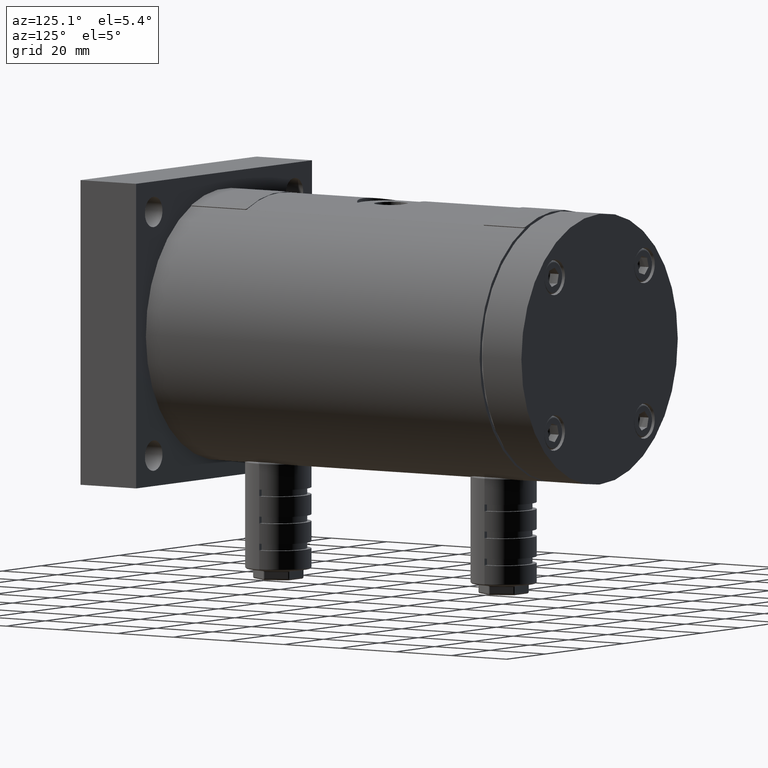
[diagram: clean part render]
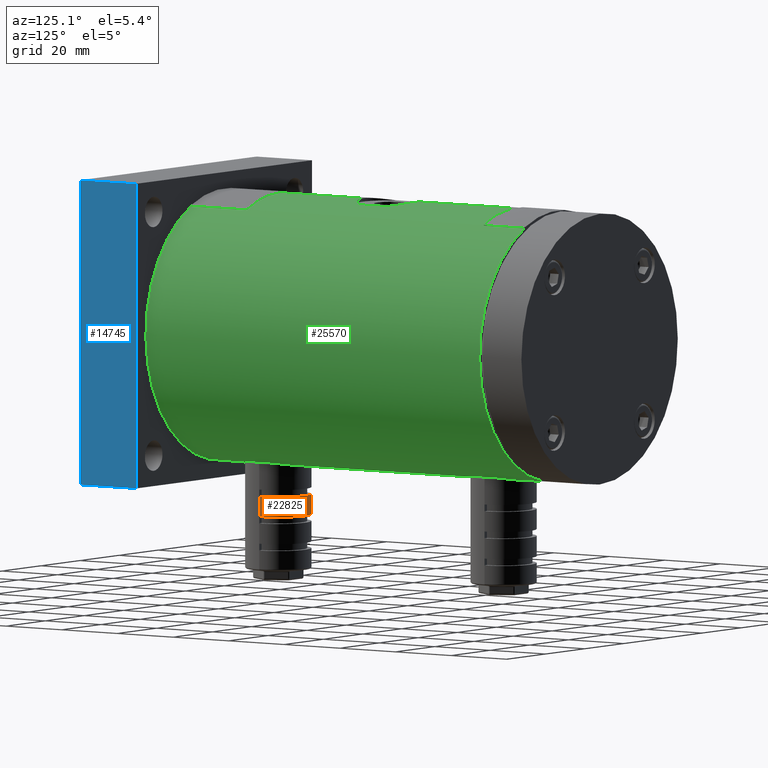
[diagram: same view with three faces highlighted in distinct colors, each labeled with its STEP entity id]
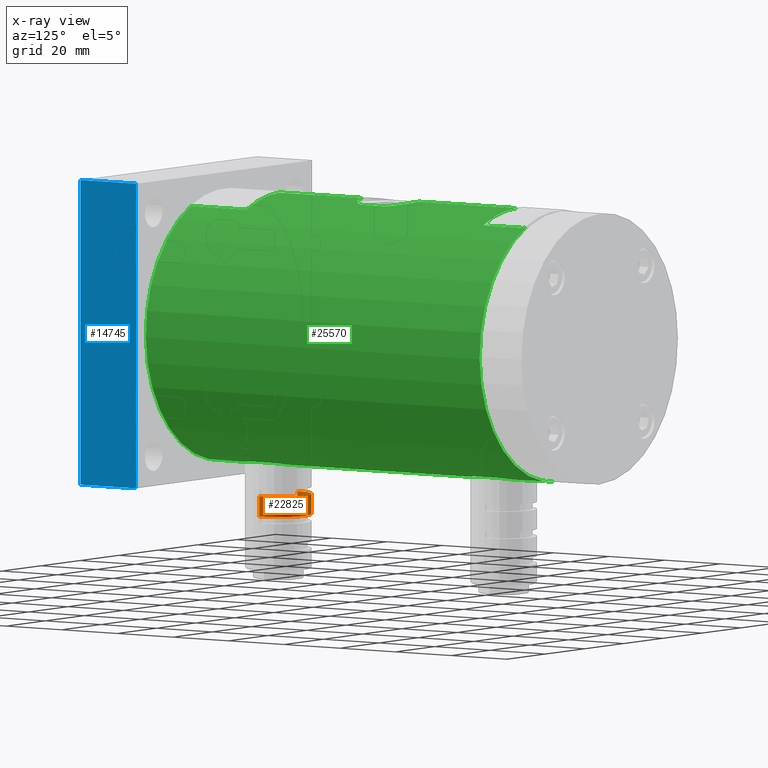
[diagram: x-ray of the same camera — body ghosted, the three highlighted faces saturated]
A machine part, auxiliary view with three faces highlighted in distinct colors.
The next image is the same camera in x-ray (body ghosted, the three faces saturated) — at least one of them is partly hidden behind the body in this view.
Their STEP definitions:

[orange] entity #22825 — the highlighted cylindrical surface (edge-blend (fillet) strip) has radius 9.75 mm, axis along (0, 0, 1).
#14 = VERTEX_POINT ( 'NONE', #27151 ) ;
#118 = VECTOR ( 'NONE', #29198, 1000.000000000000000 ) ;
#1915 = CARTESIAN_POINT ( 'NONE',  ( -9.750000000000000000, 39.50000000000000000, -55.00000000000000000 ) ) ;
#2531 = CARTESIAN_POINT ( 'NONE',  ( 9.750000000000000000, 39.50000000000000000, -49.00000000000000000 ) ) ;
#2905 = DIRECTION ( 'NONE',  ( 0.0000000000000000000, 0.0000000000000000000, -1.000000000000000000 ) ) ;
#5059 = EDGE_CURVE ( 'NONE', #15337, #8485, #15505, .T. ) ;
#7874 = FACE_OUTER_BOUND ( 'NONE', #16492, .T. ) ;
#8348 = CARTESIAN_POINT ( 'NONE',  ( 0.0000000000000000000, 39.50000000000000000, -49.00000000000000000 ) ) ;
#8485 = VERTEX_POINT ( 'NONE', #2531 ) ;
#10436 = ORIENTED_EDGE ( 'NONE', *, *, #5059, .F. ) ;
#11415 = CARTESIAN_POINT ( 'NONE',  ( 9.750000000000000000, 39.50000000000000000, -71.00000000000000000 ) ) ;
#12764 = CARTESIAN_POINT ( 'NONE',  ( 9.750000000000000000, 39.50000000000000000, -55.00000000000000000 ) ) ;
#13648 = ORIENTED_EDGE ( 'NONE', *, *, #30459, .T. ) ;
#13779 = DIRECTION ( 'NONE',  ( -1.000000000000000000, 0.0000000000000000000, 0.0000000000000000000 ) ) ;
#13902 = DIRECTION ( 'NONE',  ( 1.000000000000000000, 0.0000000000000000000, 0.0000000000000000000 ) ) ;
#14058 = DIRECTION ( 'NONE',  ( 0.0000000000000000000, 0.0000000000000000000, 1.000000000000000000 ) ) ;
#15042 = DIRECTION ( 'NONE',  ( -1.000000000000000000, 0.0000000000000000000, 0.0000000000000000000 ) ) ;
#15337 = VERTEX_POINT ( 'NONE', #12764 ) ;
#15505 = LINE ( 'NONE', #11415, #20708 ) ;
#16492 = EDGE_LOOP ( 'NONE', ( #23538, #13648, #29654, #10436 ) ) ;
#16694 = AXIS2_PLACEMENT_3D ( 'NONE', #32345, #2905, #15042 ) ;
#20417 = CYLINDRICAL_SURFACE ( 'NONE', #23434, 9.750000000000000000 ) ;
#20708 = VECTOR ( 'NONE', #14058, 1000.000000000000000 ) ;
#21719 = CARTESIAN_POINT ( 'NONE',  ( -9.750000000000000000, 39.50000000000000000, -71.00000000000000000 ) ) ;
#22594 = VERTEX_POINT ( 'NONE', #1915 ) ;
#22825 = ADVANCED_FACE ( 'NONE', ( #7874 ), #20417, .T. ) ;
#22852 = AXIS2_PLACEMENT_3D ( 'NONE', #8348, #23799, #13779 ) ;
#23434 = AXIS2_PLACEMENT_3D ( 'NONE', #26735, #26957, #13902 ) ;
#23538 = ORIENTED_EDGE ( 'NONE', *, *, #29781, .F. ) ;
#23799 = DIRECTION ( 'NONE',  ( 0.0000000000000000000, 0.0000000000000000000, -1.000000000000000000 ) ) ;
#25002 = CIRCLE ( 'NONE', #22852, 9.750000000000000000 ) ;
#26735 = CARTESIAN_POINT ( 'NONE',  ( 0.0000000000000000000, 39.50000000000000000, -71.00000000000000000 ) ) ;
#26957 = DIRECTION ( 'NONE',  ( 0.0000000000000000000, 0.0000000000000000000, 1.000000000000000000 ) ) ;
#26995 = CIRCLE ( 'NONE', #16694, 9.750000000000000000 ) ;
#27151 = CARTESIAN_POINT ( 'NONE',  ( -9.750000000000000000, 39.50000000000000000, -49.00000000000000000 ) ) ;
#27261 = LINE ( 'NONE', #21719, #118 ) ;
#29198 = DIRECTION ( 'NONE',  ( 0.0000000000000000000, 0.0000000000000000000, 1.000000000000000000 ) ) ;
#29654 = ORIENTED_EDGE ( 'NONE', *, *, #29995, .T. ) ;
#29781 = EDGE_CURVE ( 'NONE', #22594, #15337, #26995, .T. ) ;
#29995 = EDGE_CURVE ( 'NONE', #14, #8485, #25002, .T. ) ;
#30459 = EDGE_CURVE ( 'NONE', #22594, #14, #27261, .T. ) ;
#32345 = CARTESIAN_POINT ( 'NONE',  ( 0.0000000000000000000, 39.50000000000000000, -55.00000000000000000 ) ) ;

[blue] entity #14745 — the highlighted planar face has unit normal (-1, 0, 0).
#163 = LINE ( 'NONE', #1125, #11514 ) ;
#499 = EDGE_CURVE ( 'NONE', #29553, #1955, #4841, .T. ) ;
#591 = VECTOR ( 'NONE', #31223, 1000.000000000000000 ) ;
#798 = CARTESIAN_POINT ( 'NONE',  ( 45.00000000000000000, 0.0000000000000000000, 45.00000000000000000 ) ) ;
#1125 = CARTESIAN_POINT ( 'NONE',  ( 45.00000000000000000, 20.00000000000000000, 45.00000000000000000 ) ) ;
#1955 = VERTEX_POINT ( 'NONE', #4145 ) ;
#4145 = CARTESIAN_POINT ( 'NONE',  ( 45.00000000000000000, 0.0000000000000000000, -45.00000000000000000 ) ) ;
#4168 = CARTESIAN_POINT ( 'NONE',  ( 45.00000000000000000, 20.00000000000000000, -45.00000000000000000 ) ) ;
#4841 = LINE ( 'NONE', #8728, #23038 ) ;
#8728 = CARTESIAN_POINT ( 'NONE',  ( 45.00000000000000000, 0.0000000000000000000, 45.00000000000000000 ) ) ;
#9230 = EDGE_CURVE ( 'NONE', #17350, #12752, #163, .T. ) ;
#9331 = DIRECTION ( 'NONE',  ( 0.0000000000000000000, 0.0000000000000000000, -1.000000000000000000 ) ) ;
#10152 = DIRECTION ( 'NONE',  ( -1.000000000000000000, 0.0000000000000000000, 0.0000000000000000000 ) ) ;
#10764 = AXIS2_PLACEMENT_3D ( 'NONE', #17846, #10152, #20083 ) ;
#11514 = VECTOR ( 'NONE', #9331, 1000.000000000000000 ) ;
#12039 = EDGE_LOOP ( 'NONE', ( #21715, #13822, #29342, #32900 ) ) ;
#12752 = VERTEX_POINT ( 'NONE', #4168 ) ;
#13203 = LINE ( 'NONE', #28583, #591 ) ;
#13822 = ORIENTED_EDGE ( 'NONE', *, *, #9230, .F. ) ;
#14745 = ADVANCED_FACE ( 'NONE', ( #23303 ), #28211, .F. ) ;
#15001 = EDGE_CURVE ( 'NONE', #1955, #12752, #13203, .T. ) ;
#15582 = CARTESIAN_POINT ( 'NONE',  ( 45.00000000000000000, 20.00000000000000000, 45.00000000000000000 ) ) ;
#17350 = VERTEX_POINT ( 'NONE', #30323 ) ;
#17846 = CARTESIAN_POINT ( 'NONE',  ( 45.00000000000000000, 20.00000000000000000, 45.00000000000000000 ) ) ;
#20083 = DIRECTION ( 'NONE',  ( 0.0000000000000000000, 0.0000000000000000000, 1.000000000000000000 ) ) ;
#21715 = ORIENTED_EDGE ( 'NONE', *, *, #15001, .T. ) ;
#23038 = VECTOR ( 'NONE', #26762, 1000.000000000000000 ) ;
#23303 = FACE_OUTER_BOUND ( 'NONE', #12039, .T. ) ;
#26692 = DIRECTION ( 'NONE',  ( 0.0000000000000000000, 1.000000000000000000, 0.0000000000000000000 ) ) ;
#26762 = DIRECTION ( 'NONE',  ( 0.0000000000000000000, 0.0000000000000000000, -1.000000000000000000 ) ) ;
#27432 = VECTOR ( 'NONE', #26692, 1000.000000000000000 ) ;
#27819 = LINE ( 'NONE', #15582, #27432 ) ;
#28211 = PLANE ( 'NONE',  #10764 ) ;
#28583 = CARTESIAN_POINT ( 'NONE',  ( 45.00000000000000000, 20.00000000000000000, -45.00000000000000000 ) ) ;
#29342 = ORIENTED_EDGE ( 'NONE', *, *, #32706, .F. ) ;
#29553 = VERTEX_POINT ( 'NONE', #798 ) ;
#30323 = CARTESIAN_POINT ( 'NONE',  ( 45.00000000000000000, 20.00000000000000000, 45.00000000000000000 ) ) ;
#31223 = DIRECTION ( 'NONE',  ( 0.0000000000000000000, 1.000000000000000000, 0.0000000000000000000 ) ) ;
#32706 = EDGE_CURVE ( 'NONE', #29553, #17350, #27819, .T. ) ;
#32900 = ORIENTED_EDGE ( 'NONE', *, *, #499, .T. ) ;

[green] entity #25570 — the highlighted cylindrical surface (partial cylindrical patch) has radius 40 mm, axis along (0, -1, 0).
#269 = LINE ( 'NONE', #27860, #18909 ) ;
#280 = DIRECTION ( 'NONE',  ( 0.0000000000000000000, 0.0000000000000000000, 1.000000000000000000 ) ) ;
#299 = CARTESIAN_POINT ( 'NONE',  ( 4.898587196589413000E-015, 20.00000000000000000, 40.00000000000000000 ) ) ;
#311 = EDGE_CURVE ( 'NONE', #17379, #25959, #27941, .T. ) ;
#406 = VERTEX_POINT ( 'NONE', #23939 ) ;
#546 = CARTESIAN_POINT ( 'NONE',  ( 7.913580384309922200, 45.63062720774981800, -39.21030020162589100 ) ) ;
#656 = VECTOR ( 'NONE', #1209, 1000.000000000000000 ) ;
#894 = CARTESIAN_POINT ( 'NONE',  ( 6.679007288837318000, 113.0436117426184900, -39.44005711361091200 ) ) ;
#984 = ORIENTED_EDGE ( 'NONE', *, *, #5237, .T. ) ;
#990 = CARTESIAN_POINT ( 'NONE',  ( 4.427115605292661000, 129.5131225333751700, -39.76204522458090900 ) ) ;
#1013 = CARTESIAN_POINT ( 'NONE',  ( 7.015596314812253100, 113.3593897249827600, -39.38122163865814000 ) ) ;
#1049 = CARTESIAN_POINT ( 'NONE',  ( 5.972798125681541700, 71.96686855968303600, 39.55315626002003900 ) ) ;
#1209 = DIRECTION ( 'NONE',  ( 0.0000000000000000000, -1.000000000000000000, 0.0000000000000000000 ) ) ;
#1380 = ORIENTED_EDGE ( 'NONE', *, *, #1701, .T. ) ;
#1393 = CARTESIAN_POINT ( 'NONE',  ( 8.677520557029112100, 75.00880907345428700, 39.04801308279163400 ) ) ;
#1447 = CARTESIAN_POINT ( 'NONE',  ( 0.9122863123777285000, 130.4687344212560200, -39.99214966521825700 ) ) ;
#1509 = CARTESIAN_POINT ( 'NONE',  ( 7.623772936783207200, 73.51280136235986600, 39.26801524574085500 ) ) ;
#1701 = EDGE_CURVE ( 'NONE', #12001, #7999, #18520, .T. ) ;
#2019 = EDGE_CURVE ( 'NONE', #6754, #16847, #26251, .T. ) ;
#2166 = CARTESIAN_POINT ( 'NONE',  ( 0.0000000000000000000, 20.00000000000000000, -40.00000000000000000 ) ) ;
#2394 = CARTESIAN_POINT ( 'NONE',  ( 5.605003572320108600, 31.20604910726403200, -39.60727467161500200 ) ) ;
#2507 = CARTESIAN_POINT ( 'NONE',  ( -6.130928347764551100E-026, 29.50000000000000000, -40.00000000000000000 ) ) ;
#2562 = CARTESIAN_POINT ( 'NONE',  ( 16.73075583459029800, 20.05432771339359400, 36.33304702313883900 ) ) ;
#2622 = CARTESIAN_POINT ( 'NONE',  ( 5.974563797508679400, 31.46809788165610300, -39.55289914682276000 ) ) ;
#2816 = CARTESIAN_POINT ( 'NONE',  ( 16.94705028815749900, 39.50000000000000000, 36.23254733703745200 ) ) ;
#2924 = CARTESIAN_POINT ( 'NONE',  ( 0.0000000000000000000, 40.00000000000000000, 0.0000000000000000000 ) ) ;
#3140 = CARTESIAN_POINT ( 'NONE',  ( 4.898587196650661800E-015, 70.00000000000000000, 40.00000000000000000 ) ) ;
#3303 = CARTESIAN_POINT ( 'NONE',  ( 2.266955794406624800, 49.25050890735700900, -39.93817469168590900 ) ) ;
#3566 = AXIS2_PLACEMENT_3D ( 'NONE', #6766, #24957, #11858 ) ;
#3569 = ORIENTED_EDGE ( 'NONE', *, *, #26370, .F. ) ;
#3628 = VERTEX_POINT ( 'NONE', #9009 ) ;
#3629 = CARTESIAN_POINT ( 'NONE',  ( -6.128463157435735500E-026, 110.5000000000000000, -40.00000000000000000 ) ) ;
#3636 = EDGE_CURVE ( 'NONE', #12001, #3628, #30488, .T. ) ;
#3933 = CARTESIAN_POINT ( 'NONE',  ( 5.597780261123928900, 128.7990233608682300, -39.60832935638958200 ) ) ;
#4115 = CARTESIAN_POINT ( 'NONE',  ( 0.9122863123777414900, 70.03126557874398400, 39.99214966521826400 ) ) ;
#4179 = B_SPLINE_CURVE_WITH_KNOTS ( 'NONE', 3,
 ( #25680, #18147, #10991, #26230, #3303, #13167, #13276, #10662, #29065, #18358, #8184, #5666, #546, #5772, #13614, #15779 ),
 .UNSPECIFIED., .F., .F.,
 ( 4, 2, 2, 2, 2, 2, 2, 4 ),
 ( 0.01094653991918589200, 0.01231348059462424700, 0.01368042127006260100, 0.01641430262093930600, 0.01778124329637766100, 0.01914818397181600900, 0.02051512464725436400, 0.02188206532269271500 ),
 .UNSPECIFIED. ) ;
#4511 = CARTESIAN_POINT ( 'NONE',  ( 16.73075583459029000, 125.0543277133935600, 36.33304702313885300 ) ) ;
#4660 = VECTOR ( 'NONE', #5372, 1000.000000000000000 ) ;
#4832 = VERTEX_POINT ( 'NONE', #14558 ) ;
#4854 = CARTESIAN_POINT ( 'NONE',  ( 8.888194417315599300, 20.00000000000000000, 39.00000000000000000 ) ) ;
#5052 = CARTESIAN_POINT ( 'NONE',  ( 16.89803261603199000, 20.23880994704629500, 36.25555116792207900 ) ) ;
#5090 = EDGE_CURVE ( 'NONE', #25959, #19583, #13857, .T. ) ;
#5215 = CARTESIAN_POINT ( 'NONE',  ( 4.426454224360614200, 30.52121732051104900, -39.75658861793081700 ) ) ;
#5237 = EDGE_CURVE ( 'NONE', #26936, #31576, #16251, .T. ) ;
#5243 = CARTESIAN_POINT ( 'NONE',  ( 4.898587196589413000E-015, 125.0000000000000000, 40.00000000000000000 ) ) ;
#5297 = VERTEX_POINT ( 'NONE', #3140 ) ;
#5372 = DIRECTION ( 'NONE',  ( -0.0000000000000000000, 1.000000000000000000, -0.0000000000000000000 ) ) ;
#5459 = AXIS2_PLACEMENT_3D ( 'NONE', #11642, #11999, #14634 ) ;
#5469 = CARTESIAN_POINT ( 'NONE',  ( 2.276489848800112600, 89.74806126590642900, 39.93758036770261600 ) ) ;
#5542 = CARTESIAN_POINT ( 'NONE',  ( 0.0000000000000000000, 20.00000000000000000, -40.00000000000000000 ) ) ;
#5620 = DIRECTION ( 'NONE',  ( 0.0000000000000000000, 1.000000000000000000, 0.0000000000000000000 ) ) ;
#5666 = CARTESIAN_POINT ( 'NONE',  ( 7.623772936783177000, 45.98719863764014800, -39.26801524574085500 ) ) ;
#5756 = CARTESIAN_POINT ( 'NONE',  ( 16.94705028815749900, 140.0000000000000000, 36.23254733703745200 ) ) ;
#5772 = CARTESIAN_POINT ( 'NONE',  ( 8.440347930246039400, 44.88236669837056800, -39.10029313466780100 ) ) ;
#5849 = LINE ( 'NONE', #13090, #4660 ) ;
#6007 = CARTESIAN_POINT ( 'NONE',  ( 3.582574804664378800, 111.1524231388645600, -39.84149838177187100 ) ) ;
#6114 = CARTESIAN_POINT ( 'NONE',  ( 4.426454224360639100, 111.5212173205110800, -39.75658861793080900 ) ) ;
#6260 = ORIENTED_EDGE ( 'NONE', *, *, #13001, .T. ) ;
#6308 = ORIENTED_EDGE ( 'NONE', *, *, #9122, .T. ) ;
#6545 = CARTESIAN_POINT ( 'NONE',  ( 1.815754276317127700, 130.3443368839816700, -39.96132302075351800 ) ) ;
#6754 = VERTEX_POINT ( 'NONE', #14143 ) ;
#6766 = CARTESIAN_POINT ( 'NONE',  ( 0.0000000000000000000, 20.00000000000000000, 0.0000000000000000000 ) ) ;
#6791 = VERTEX_POINT ( 'NONE', #14777 ) ;
#6843 = VERTEX_POINT ( 'NONE', #15447 ) ;
#7063 = AXIS2_PLACEMENT_3D ( 'NONE', #16690, #8893, #30017 ) ;
#7124 = LINE ( 'NONE', #16436, #8322 ) ;
#7724 = CARTESIAN_POINT ( 'NONE',  ( 8.888194417315590500, 34.91742430504415000, -39.00000000000000000 ) ) ;
#7813 = DIRECTION ( 'NONE',  ( 0.0000000000000000000, -1.000000000000000000, 0.0000000000000000000 ) ) ;
#7872 = CARTESIAN_POINT ( 'NONE',  ( 0.9224897157960974000, 89.96790592471269600, 39.99194182858111200 ) ) ;
#7999 = VERTEX_POINT ( 'NONE', #19388 ) ;
#8036 = CARTESIAN_POINT ( 'NONE',  ( 16.89803261603201200, 125.2388099470463300, 36.25555116792206400 ) ) ;
#8184 = CARTESIAN_POINT ( 'NONE',  ( 7.005301154797025200, 46.65062344739445900, -39.38305080693931600 ) ) ;
#8300 = EDGE_LOOP ( 'NONE', ( #14905, #1380, #21657, #30353, #12801, #26971, #984, #28421, #6308, #12895, #29889, #9102, #13029, #8402, #26792, #16249, #3569, #13060, #22968, #24995, #28670, #13068, #30955, #6260 ) ) ;
#8322 = VECTOR ( 'NONE', #23750, 1000.000000000000000 ) ;
#8402 = ORIENTED_EDGE ( 'NONE', *, *, #19149, .T. ) ;
#8618 = CARTESIAN_POINT ( 'NONE',  ( 0.0000000000000000000, 20.00000000000000000, -40.00000000000000000 ) ) ;
#8763 = CARTESIAN_POINT ( 'NONE',  ( 4.831232033113883200, 111.7327379702069400, -39.70908547172410900 ) ) ;
#8797 = CARTESIAN_POINT ( 'NONE',  ( 3.595054090188611400, 70.62334621554227000, 39.84800034127530200 ) ) ;
#8893 = DIRECTION ( 'NONE',  ( 0.0000000000000000000, 1.000000000000000000, 0.0000000000000000000 ) ) ;
#8913 = CARTESIAN_POINT ( 'NONE',  ( 8.888194417315599300, 75.41742430504419300, 39.00000000000000000 ) ) ;
#9009 = CARTESIAN_POINT ( 'NONE',  ( 16.49281940641844800, 125.0000000000000000, 36.44155468729714900 ) ) ;
#9102 = ORIENTED_EDGE ( 'NONE', *, *, #33477, .F. ) ;
#9122 = EDGE_CURVE ( 'NONE', #16627, #6754, #7124, .T. ) ;
#9198 = CARTESIAN_POINT ( 'NONE',  ( 3.595054090188601700, 129.8766537844577700, -39.84800034127530200 ) ) ;
#9730 = CARTESIAN_POINT ( 'NONE',  ( 8.888194417315599300, 84.58257569495590600, 39.00000000000000000 ) ) ;
#9763 = CARTESIAN_POINT ( 'NONE',  ( 16.49281940641844800, 125.0000000000000000, 36.44155468729714900 ) ) ;
#9839 = B_SPLINE_CURVE_WITH_KNOTS ( 'NONE', 3,
 ( #21016, #10967, #16189, #28828, #13248, #13367 ),
 .UNSPECIFIED., .F., .F.,
 ( 4, 2, 4 ),
 ( 0.0000000000000000000, 0.0003905460534146331500, 0.0007810921068292662900 ),
 .UNSPECIFIED. ) ;
#10376 = CARTESIAN_POINT ( 'NONE',  ( 16.94705028815749900, 20.50000000000000000, 36.23254733703745200 ) ) ;
#10415 = LINE ( 'NONE', #8618, #656 ) ;
#10431 = CARTESIAN_POINT ( 'NONE',  ( 2.276489848800120600, 29.75193873409359600, -39.93758036770263000 ) ) ;
#10618 = CARTESIAN_POINT ( 'NONE',  ( 16.49281940641844800, 40.00000000000000000, 36.44155468729714900 ) ) ;
#10662 = CARTESIAN_POINT ( 'NONE',  ( 5.597780261123924500, 47.79902336086824000, -39.60832935638956800 ) ) ;
#10795 = CARTESIAN_POINT ( 'NONE',  ( 4.898587196528142200E-015, 90.00000000000000000, 40.00000000000000000 ) ) ;
#10797 = EDGE_CURVE ( 'NONE', #31576, #16627, #32247, .T. ) ;
#10849 = EDGE_CURVE ( 'NONE', #20903, #16847, #15580, .T. ) ;
#10902 = DIRECTION ( 'NONE',  ( -0.0000000000000000000, 1.000000000000000000, -0.0000000000000000000 ) ) ;
#10913 = CARTESIAN_POINT ( 'NONE',  ( 1.830573553049774900, 89.84170393105509300, 39.96067315453080900 ) ) ;
#10967 = CARTESIAN_POINT ( 'NONE',  ( 16.61312775298392500, 140.0000000000000300, 36.38710520373323500 ) ) ;
#10991 = CARTESIAN_POINT ( 'NONE',  ( 0.9122863123777300600, 49.46873442125600900, -39.99214966521827100 ) ) ;
#11361 = CARTESIAN_POINT ( 'NONE',  ( 7.005301154797059800, 72.84937655260561900, 39.38305080693930200 ) ) ;
#11365 = VERTEX_POINT ( 'NONE', #32609 ) ;
#11642 = CARTESIAN_POINT ( 'NONE',  ( 0.0000000000000000000, 140.0000000000000000, 0.0000000000000000000 ) ) ;
#11823 = CARTESIAN_POINT ( 'NONE',  ( 0.4576248742668091500, 70.00000000000000000, 40.00000000000000000 ) ) ;
#11858 = DIRECTION ( 'NONE',  ( 0.0000000000000000000, 0.0000000000000000000, -1.000000000000000000 ) ) ;
#11999 = DIRECTION ( 'NONE',  ( 0.0000000000000000000, -1.000000000000000000, 0.0000000000000000000 ) ) ;
#12000 = CARTESIAN_POINT ( 'NONE',  ( 8.677520557029110300, 125.4911909265457300, -39.04801308279162700 ) ) ;
#12001 = VERTEX_POINT ( 'NONE', #5243 ) ;
#12290 = CARTESIAN_POINT ( 'NONE',  ( 6.101346063818763200E-026, 130.5000000000000000, -40.00000000000000000 ) ) ;
#12386 = DIRECTION ( 'NONE',  ( 0.0000000000000000000, -1.000000000000000000, 0.0000000000000000000 ) ) ;
#12669 = DIRECTION ( 'NONE',  ( 0.0000000000000000000, -1.000000000000000000, 0.0000000000000000000 ) ) ;
#12767 = CARTESIAN_POINT ( 'NONE',  ( 8.888194417315590500, 115.9174243050442100, -39.00000000000000000 ) ) ;
#12801 = ORIENTED_EDGE ( 'NONE', *, *, #31454, .F. ) ;
#12895 = ORIENTED_EDGE ( 'NONE', *, *, #2019, .T. ) ;
#12912 = B_SPLINE_CURVE_WITH_KNOTS ( 'NONE', 3,
 ( #21389, #18794, #16555, #1013, #894, #21495, #21612, #8763, #6114, #6007, #29086, #19127, #26796, #24085, #29316, #3629 ),
 .UNSPECIFIED., .F., .F.,
 ( 4, 2, 2, 2, 2, 2, 2, 4 ),
 ( 0.0000000000000000000, 0.002736634979796476500, 0.004104952469694713100, 0.005473269959592950500, 0.006841587449491187900, 0.008209904939389424400, 0.009578222429287661800, 0.01094653991918589900 ),
 .UNSPECIFIED. ) ;
#13001 = EDGE_CURVE ( 'NONE', #6791, #3628, #28696, .T. ) ;
#13029 = ORIENTED_EDGE ( 'NONE', *, *, #33280, .F. ) ;
#13042 = CARTESIAN_POINT ( 'NONE',  ( 6.679007288837306400, 32.04361174261848100, -39.44005711361092600 ) ) ;
#13060 = ORIENTED_EDGE ( 'NONE', *, *, #28040, .T. ) ;
#13068 = ORIENTED_EDGE ( 'NONE', *, *, #26568, .T. ) ;
#13079 = CARTESIAN_POINT ( 'NONE',  ( 5.974563797508670500, 88.03190211834393600, 39.55289914682276700 ) ) ;
#13090 = CARTESIAN_POINT ( 'NONE',  ( 8.888194417315590500, 20.00000000000000000, -39.00000000000000000 ) ) ;
#13167 = CARTESIAN_POINT ( 'NONE',  ( 3.595054090188594600, 48.87665378445773700, -39.84800034127528800 ) ) ;
#13248 = CARTESIAN_POINT ( 'NONE',  ( 16.94705028815755600, 139.6320563149882000, 36.23254733703745200 ) ) ;
#13276 = CARTESIAN_POINT ( 'NONE',  ( 4.427115605292653900, 48.51312253337518900, -39.76204522458089500 ) ) ;
#13367 = CARTESIAN_POINT ( 'NONE',  ( 16.94705028815755200, 139.5000000000000000, 36.23254733703745200 ) ) ;
#13614 = CARTESIAN_POINT ( 'NONE',  ( 8.677520557029101400, 44.49119092654578400, -39.04801308279162700 ) ) ;
#13787 = VECTOR ( 'NONE', #22851, 1000.000000000000000 ) ;
#13803 = VERTEX_POINT ( 'NONE', #19832 ) ;
#13857 = B_SPLINE_CURVE_WITH_KNOTS ( 'NONE', 3,
 ( #32033, #16533, #1447, #6545, #14175, #9198, #990, #3933, #22024, #19346, #29742, #24641, #22497, #25090, #12000, #14518 ),
 .UNSPECIFIED., .F., .F.,
 ( 4, 2, 2, 2, 2, 2, 2, 4 ),
 ( 0.01094653991918587800, 0.01231348059462423300, 0.01368042127006258900, 0.01641430262093929900, 0.01778124329637765400, 0.01914818397181600500, 0.02051512464725435700, 0.02188206532269271200 ),
 .UNSPECIFIED. ) ;
#14143 = CARTESIAN_POINT ( 'NONE',  ( 16.94705028815749900, 20.50000000000000000, 36.23254733703745200 ) ) ;
#14175 = CARTESIAN_POINT ( 'NONE',  ( 2.266955794406624300, 130.2505089073570200, -39.93817469168590900 ) ) ;
#14518 = CARTESIAN_POINT ( 'NONE',  ( 8.888194417315590500, 125.0825756949557900, -39.00000000000000000 ) ) ;
#14558 = CARTESIAN_POINT ( 'NONE',  ( 6.130928347764551100E-026, 49.50000000000000000, -40.00000000000000000 ) ) ;
#14634 = DIRECTION ( 'NONE',  ( 0.0000000000000000000, 0.0000000000000000000, -1.000000000000000000 ) ) ;
#14765 = VERTEX_POINT ( 'NONE', #9730 ) ;
#14777 = CARTESIAN_POINT ( 'NONE',  ( 16.94705028815749900, 125.5000000000000000, 36.23254733703745200 ) ) ;
#14861 = VERTEX_POINT ( 'NONE', #21780 ) ;
#14905 = ORIENTED_EDGE ( 'NONE', *, *, #3636, .F. ) ;
#15222 = CARTESIAN_POINT ( 'NONE',  ( 8.466395686721242000, 34.09931907949901800, -39.09612895185896500 ) ) ;
#15405 = CARTESIAN_POINT ( 'NONE',  ( 16.73046626480108400, 39.94585924540773900, 36.33318053125041300 ) ) ;
#15443 = CARTESIAN_POINT ( 'NONE',  ( 7.944541937770164700, 33.35900004825221300, -39.20817632868313000 ) ) ;
#15447 = CARTESIAN_POINT ( 'NONE',  ( -6.130928347764551100E-026, 29.50000000000000000, -40.00000000000000000 ) ) ;
#15580 = CIRCLE ( 'NONE', #17619, 40.00000000000000000 ) ;
#15587 = CARTESIAN_POINT ( 'NONE',  ( 4.831232033113854700, 88.76726202979310200, 39.70908547172412300 ) ) ;
#15730 = CARTESIAN_POINT ( 'NONE',  ( 16.94705028815755600, 39.63205631498819100, 36.23254733703745200 ) ) ;
#15779 = CARTESIAN_POINT ( 'NONE',  ( 8.888194417315590500, 44.08257569495585000, -39.00000000000000000 ) ) ;
#15792 = DIRECTION ( 'NONE',  ( 0.0000000000000000000, -1.000000000000000000, 0.0000000000000000000 ) ) ;
#15801 = CARTESIAN_POINT ( 'NONE',  ( 6.679007288837297600, 87.45638825738153300, 39.44005711361093300 ) ) ;
#16189 = CARTESIAN_POINT ( 'NONE',  ( 16.73046626480108400, 139.9458592454077500, 36.33318053125041300 ) ) ;
#16249 = ORIENTED_EDGE ( 'NONE', *, *, #20310, .F. ) ;
#16251 = CIRCLE ( 'NONE', #18778, 40.00000000000000000 ) ;
#16436 = CARTESIAN_POINT ( 'NONE',  ( 16.94705028815749900, 40.00000000000000000, 36.23254733703745200 ) ) ;
#16533 = CARTESIAN_POINT ( 'NONE',  ( 0.4576248742667971000, 130.5000000000000600, -40.00000000000000700 ) ) ;
#16555 = CARTESIAN_POINT ( 'NONE',  ( 7.944541937770186900, 114.3590000482522600, -39.20817632868312300 ) ) ;
#16627 = VERTEX_POINT ( 'NONE', #27449 ) ;
#16690 = CARTESIAN_POINT ( 'NONE',  ( 0.0000000000000000000, 125.0000000000000000, 0.0000000000000000000 ) ) ;
#16709 = CARTESIAN_POINT ( 'NONE',  ( 2.266955794406634500, 70.24949109264299800, 39.93817469168590900 ) ) ;
#16847 = VERTEX_POINT ( 'NONE', #20209 ) ;
#17102 = CARTESIAN_POINT ( 'NONE',  ( 0.0000000000000000000, 140.0000000000000000, -40.00000000000000000 ) ) ;
#17379 = VERTEX_POINT ( 'NONE', #17102 ) ;
#17619 = AXIS2_PLACEMENT_3D ( 'NONE', #28802, #31876, #18836 ) ;
#17703 = VECTOR ( 'NONE', #12669, 1000.000000000000000 ) ;
#17738 = VERTEX_POINT ( 'NONE', #23022 ) ;
#17912 = CARTESIAN_POINT ( 'NONE',  ( 7.015596314812225600, 32.35938972498274100, -39.38122163865816100 ) ) ;
#18147 = CARTESIAN_POINT ( 'NONE',  ( 0.4576248742668009300, 49.50000000000001400, -40.00000000000000000 ) ) ;
#18151 = EDGE_CURVE ( 'NONE', #4832, #17738, #4179, .T. ) ;
#18304 = CARTESIAN_POINT ( 'NONE',  ( 16.89786330701693400, 39.76150880891943000, 36.25563024705887500 ) ) ;
#18325 = VECTOR ( 'NONE', #23833, 1000.000000000000000 ) ;
#18358 = CARTESIAN_POINT ( 'NONE',  ( 6.675154073597247400, 46.95974773576776300, -39.44069986287574600 ) ) ;
#18520 = LINE ( 'NONE', #299, #18896 ) ;
#18618 = CARTESIAN_POINT ( 'NONE',  ( 4.898587196589413000E-015, 40.00000000000000000, 40.00000000000000000 ) ) ;
#18778 = AXIS2_PLACEMENT_3D ( 'NONE', #2924, #5620, #280 ) ;
#18794 = CARTESIAN_POINT ( 'NONE',  ( 8.466395686721238400, 115.0993190794990700, -39.09612895185896500 ) ) ;
#18836 = DIRECTION ( 'NONE',  ( 0.0000000000000000000, 0.0000000000000000000, -1.000000000000000000 ) ) ;
#18896 = VECTOR ( 'NONE', #7813, 1000.000000000000000 ) ;
#18909 = VECTOR ( 'NONE', #12386, 1000.000000000000000 ) ;
#19127 = CARTESIAN_POINT ( 'NONE',  ( 2.276489848800118000, 110.7519387340936000, -39.93758036770263700 ) ) ;
#19149 = EDGE_CURVE ( 'NONE', #11365, #17738, #21018, .T. ) ;
#19346 = CARTESIAN_POINT ( 'NONE',  ( 6.675154073597270500, 127.9597477357677600, -39.44069986287574600 ) ) ;
#19388 = CARTESIAN_POINT ( 'NONE',  ( 4.898587196528142200E-015, 90.00000000000000000, 40.00000000000000000 ) ) ;
#19512 = CARTESIAN_POINT ( 'NONE',  ( 8.440347930246064200, 74.61763330162949600, 39.10029313466779400 ) ) ;
#19583 = VERTEX_POINT ( 'NONE', #28162 ) ;
#19832 = CARTESIAN_POINT ( 'NONE',  ( 8.888194417315599300, 75.41742430504419300, 39.00000000000000000 ) ) ;
#20209 = CARTESIAN_POINT ( 'NONE',  ( 16.49281940641844800, 20.00000000000000000, 36.44155468729714900 ) ) ;
#20310 = EDGE_CURVE ( 'NONE', #406, #4832, #269, .T. ) ;
#20478 = CARTESIAN_POINT ( 'NONE',  ( 3.152490018273729900, 29.99900472791195900, -39.87799566606980800 ) ) ;
#20644 = CARTESIAN_POINT ( 'NONE',  ( 16.61312782736975900, 19.99999999999999600, 36.38710517006750700 ) ) ;
#20702 = CARTESIAN_POINT ( 'NONE',  ( 4.831232033113869800, 30.73273797020691900, -39.70908547172410200 ) ) ;
#20819 = CARTESIAN_POINT ( 'NONE',  ( 0.4580858046900545500, 29.49999999999998200, -39.99999999999999300 ) ) ;
#20850 = CARTESIAN_POINT ( 'NONE',  ( 7.944541937770147800, 86.14099995174780100, 39.20817632868311600 ) ) ;
#20903 = VERTEX_POINT ( 'NONE', #5542 ) ;
#20963 = CARTESIAN_POINT ( 'NONE',  ( 0.4580858046900546100, 90.00000000000004300, 40.00000000000001400 ) ) ;
#21016 = CARTESIAN_POINT ( 'NONE',  ( 16.49281940641844800, 140.0000000000000000, 36.44155468729714900 ) ) ;
#21018 = LINE ( 'NONE', #28758, #28328 ) ;
#21063 = CARTESIAN_POINT ( 'NONE',  ( 5.605003572320088200, 88.29395089273600700, 39.60727467161499500 ) ) ;
#21389 = CARTESIAN_POINT ( 'NONE',  ( 8.888194417315590500, 115.9174243050442100, -39.00000000000000000 ) ) ;
#21495 = CARTESIAN_POINT ( 'NONE',  ( 5.974563797508694500, 112.4680978816561100, -39.55289914682275300 ) ) ;
#21584 = VERTEX_POINT ( 'NONE', #31281 ) ;
#21612 = CARTESIAN_POINT ( 'NONE',  ( 5.605003572320120100, 112.2060491072640500, -39.60727467161498800 ) ) ;
#21657 = ORIENTED_EDGE ( 'NONE', *, *, #29371, .F. ) ;
#21780 = CARTESIAN_POINT ( 'NONE',  ( 16.94705028815755200, 139.5000000000000000, 36.23254733703745200 ) ) ;
#22024 = CARTESIAN_POINT ( 'NONE',  ( 5.972798125681545200, 128.5331314403169600, -39.55315626002003900 ) ) ;
#22203 = CARTESIAN_POINT ( 'NONE',  ( 7.913580384309953300, 73.86937279225021800, 39.21030020162587700 ) ) ;
#22466 = EDGE_CURVE ( 'NONE', #17379, #21584, #22843, .T. ) ;
#22497 = CARTESIAN_POINT ( 'NONE',  ( 7.913580384309956800, 126.6306272077497500, -39.21030020162588400 ) ) ;
#22843 = CIRCLE ( 'NONE', #5459, 40.00000000000000000 ) ;
#22851 = DIRECTION ( 'NONE',  ( 0.0000000000000000000, -1.000000000000000000, 0.0000000000000000000 ) ) ;
#22968 = ORIENTED_EDGE ( 'NONE', *, *, #5090, .F. ) ;
#23022 = CARTESIAN_POINT ( 'NONE',  ( 8.888194417315590500, 44.08257569495585000, -39.00000000000000000 ) ) ;
#23032 = B_SPLINE_CURVE_WITH_KNOTS ( 'NONE', 3,
 ( #30735, #30947, #20850, #26369, #15801, #13079, #21063, #15587, #31493, #23448, #23559, #5469, #10913, #7872, #20963, #10795 ),
 .UNSPECIFIED., .F., .F.,
 ( 4, 2, 2, 2, 2, 2, 2, 4 ),
 ( 0.0000000000000000000, 0.002736634979796496000, 0.004104952469694728700, 0.005473269959592961700, 0.006841587449491194800, 0.008209904939389427900, 0.009578222429287661800, 0.01094653991918589400 ),
 .UNSPECIFIED. ) ;
#23400 = LINE ( 'NONE', #31267, #31501 ) ;
#23448 = CARTESIAN_POINT ( 'NONE',  ( 3.582574804664347700, 89.34757686113546500, 39.84149838177187100 ) ) ;
#23502 = CARTESIAN_POINT ( 'NONE',  ( 16.94705028815749900, 125.5000000000000000, 36.23254733703745200 ) ) ;
#23559 = CARTESIAN_POINT ( 'NONE',  ( 3.152490018273717000, 89.50099527208807600, 39.87799566606980800 ) ) ;
#23750 = DIRECTION ( 'NONE',  ( 0.0000000000000000000, -1.000000000000000000, 0.0000000000000000000 ) ) ;
#23833 = DIRECTION ( 'NONE',  ( 0.0000000000000000000, -1.000000000000000000, 0.0000000000000000000 ) ) ;
#23939 = CARTESIAN_POINT ( 'NONE',  ( -6.128463157435735500E-026, 110.5000000000000000, -40.00000000000000000 ) ) ;
#24016 = EDGE_CURVE ( 'NONE', #14861, #6791, #31273, .T. ) ;
#24085 = CARTESIAN_POINT ( 'NONE',  ( 0.9224897157960776400, 110.5320940752873800, -39.99194182858111900 ) ) ;
#24233 = FACE_OUTER_BOUND ( 'NONE', #8300, .T. ) ;
#24350 = CARTESIAN_POINT ( 'NONE',  ( 1.815754276317140800, 70.15566311601833100, 39.96132302075351100 ) ) ;
#24641 = CARTESIAN_POINT ( 'NONE',  ( 7.623772936783193000, 126.9871986376401600, -39.26801524574085500 ) ) ;
#24957 = DIRECTION ( 'NONE',  ( 0.0000000000000000000, -1.000000000000000000, 0.0000000000000000000 ) ) ;
#24972 = LINE ( 'NONE', #4854, #17703 ) ;
#24995 = ORIENTED_EDGE ( 'NONE', *, *, #311, .F. ) ;
#25090 = CARTESIAN_POINT ( 'NONE',  ( 8.440347930246071300, 125.8823666983704900, -39.10029313466780100 ) ) ;
#25197 = CARTESIAN_POINT ( 'NONE',  ( 16.61312782736975900, 125.0000000000000000, 36.38710517006750000 ) ) ;
#25570 = ADVANCED_FACE ( 'NONE', ( #24233 ), #27058, .T. ) ;
#25680 = CARTESIAN_POINT ( 'NONE',  ( 6.130928347764551100E-026, 49.50000000000000000, -40.00000000000000000 ) ) ;
#25828 = CARTESIAN_POINT ( 'NONE',  ( 16.49281940641844800, 20.00000000000000000, 36.44155468729714900 ) ) ;
#25891 = CARTESIAN_POINT ( 'NONE',  ( 3.582574804664361100, 30.15242313886454900, -39.84149838177186400 ) ) ;
#25893 = B_SPLINE_CURVE_WITH_KNOTS ( 'NONE', 3,
 ( #7724, #15222, #15443, #17912, #13042, #2622, #2394, #20702, #5215, #25891, #20478, #10431, #30905, #31137, #20819, #2507 ),
 .UNSPECIFIED., .F., .F.,
 ( 4, 2, 2, 2, 2, 2, 2, 4 ),
 ( 0.0000000000000000000, 0.002736634979796461400, 0.004104952469694697500, 0.005473269959592934900, 0.006841587449491178300, 0.008209904939389419200, 0.009578222429287663500, 0.01094653991918590600 ),
 .UNSPECIFIED. ) ;
#25959 = VERTEX_POINT ( 'NONE', #12290 ) ;
#26215 = EDGE_CURVE ( 'NONE', #5297, #26936, #23400, .T. ) ;
#26230 = CARTESIAN_POINT ( 'NONE',  ( 1.815754276317125500, 49.34433688398169700, -39.96132302075352500 ) ) ;
#26251 = B_SPLINE_CURVE_WITH_KNOTS ( 'NONE', 3,
 ( #10376, #30961, #5052, #2562, #20644, #25828 ),
 .UNSPECIFIED., .F., .F.,
 ( 4, 2, 4 ),
 ( 0.0000000000000000000, 0.0003905459783699482700, 0.0007810919567398965400 ),
 .UNSPECIFIED. ) ;
#26369 = CARTESIAN_POINT ( 'NONE',  ( 7.015596314812207800, 87.14061027501725200, 39.38122163865814700 ) ) ;
#26370 = EDGE_CURVE ( 'NONE', #26841, #406, #12912, .T. ) ;
#26568 = EDGE_CURVE ( 'NONE', #21584, #14861, #9839, .T. ) ;
#26722 = B_SPLINE_CURVE_WITH_KNOTS ( 'NONE', 3,
 ( #29465, #11823, #4115, #24350, #16709, #8797, #29921, #27296, #1049, #26941, #11361, #1509, #22203, #19512, #1393, #8913 ),
 .UNSPECIFIED., .F., .F.,
 ( 4, 2, 2, 2, 2, 2, 2, 4 ),
 ( 0.01094653991918592700, 0.01231348059462428000, 0.01368042127006263200, 0.01641430262093933700, 0.01778124329637770200, 0.01914818397181606400, 0.02051512464725442600, 0.02188206532269279200 ),
 .UNSPECIFIED. ) ;
#26792 = ORIENTED_EDGE ( 'NONE', *, *, #18151, .F. ) ;
#26796 = CARTESIAN_POINT ( 'NONE',  ( 1.830573553049772000, 110.6582960689448800, -39.96067315453080900 ) ) ;
#26841 = VERTEX_POINT ( 'NONE', #12767 ) ;
#26936 = VERTEX_POINT ( 'NONE', #18618 ) ;
#26941 = CARTESIAN_POINT ( 'NONE',  ( 6.675154073597272300, 72.54025226423226500, 39.44069986287573200 ) ) ;
#26971 = ORIENTED_EDGE ( 'NONE', *, *, #26215, .T. ) ;
#27058 = CYLINDRICAL_SURFACE ( 'NONE', #3566, 40.00000000000000000 ) ;
#27296 = CARTESIAN_POINT ( 'NONE',  ( 5.597780261123947600, 71.70097663913176700, 39.60832935638956100 ) ) ;
#27449 = CARTESIAN_POINT ( 'NONE',  ( 16.94705028815749900, 39.50000000000000000, 36.23254733703745200 ) ) ;
#27755 = CARTESIAN_POINT ( 'NONE',  ( 16.49281940641844800, 40.00000000000000000, 36.44155468729714900 ) ) ;
#27860 = CARTESIAN_POINT ( 'NONE',  ( 0.0000000000000000000, 20.00000000000000000, -40.00000000000000000 ) ) ;
#27941 = LINE ( 'NONE', #2166, #13787 ) ;
#28040 = EDGE_CURVE ( 'NONE', #26841, #19583, #5849, .T. ) ;
#28162 = CARTESIAN_POINT ( 'NONE',  ( 8.888194417315590500, 125.0825756949557900, -39.00000000000000000 ) ) ;
#28328 = VECTOR ( 'NONE', #10902, 1000.000000000000000 ) ;
#28421 = ORIENTED_EDGE ( 'NONE', *, *, #10797, .T. ) ;
#28670 = ORIENTED_EDGE ( 'NONE', *, *, #22466, .T. ) ;
#28696 = B_SPLINE_CURVE_WITH_KNOTS ( 'NONE', 3,
 ( #23502, #31230, #8036, #4511, #25197, #9763 ),
 .UNSPECIFIED., .F., .F.,
 ( 4, 2, 4 ),
 ( 0.0000000000000000000, 0.0003905459783699425200, 0.0007810919567398850500 ),
 .UNSPECIFIED. ) ;
#28758 = CARTESIAN_POINT ( 'NONE',  ( 8.888194417315590500, 20.00000000000000000, -39.00000000000000000 ) ) ;
#28802 = CARTESIAN_POINT ( 'NONE',  ( 0.0000000000000000000, 20.00000000000000000, 0.0000000000000000000 ) ) ;
#28828 = CARTESIAN_POINT ( 'NONE',  ( 16.89786330701693700, 139.7615088089193600, 36.25563024705887500 ) ) ;
#28860 = EDGE_CURVE ( 'NONE', #14765, #13803, #24972, .T. ) ;
#29065 = CARTESIAN_POINT ( 'NONE',  ( 5.972798125681519500, 47.53313144031698600, -39.55315626002003900 ) ) ;
#29086 = CARTESIAN_POINT ( 'NONE',  ( 3.152490018273737000, 110.9990047279119900, -39.87799566606980800 ) ) ;
#29316 = CARTESIAN_POINT ( 'NONE',  ( 0.4580858046900587700, 110.4999999999999700, -40.00000000000001400 ) ) ;
#29371 = EDGE_CURVE ( 'NONE', #14765, #7999, #23032, .T. ) ;
#29465 = CARTESIAN_POINT ( 'NONE',  ( 4.898587196650661800E-015, 70.00000000000000000, 40.00000000000000000 ) ) ;
#29742 = CARTESIAN_POINT ( 'NONE',  ( 7.005301154797038500, 127.6506234473944500, -39.38305080693931600 ) ) ;
#29889 = ORIENTED_EDGE ( 'NONE', *, *, #10849, .F. ) ;
#29921 = CARTESIAN_POINT ( 'NONE',  ( 4.427115605292675200, 70.98687746662481900, 39.76204522458090200 ) ) ;
#30017 = DIRECTION ( 'NONE',  ( 0.0000000000000000000, 0.0000000000000000000, 1.000000000000000000 ) ) ;
#30353 = ORIENTED_EDGE ( 'NONE', *, *, #28860, .T. ) ;
#30488 = CIRCLE ( 'NONE', #7063, 40.00000000000000000 ) ;
#30735 = CARTESIAN_POINT ( 'NONE',  ( 8.888194417315599300, 84.58257569495590600, 39.00000000000000000 ) ) ;
#30905 = CARTESIAN_POINT ( 'NONE',  ( 1.830573553049777500, 29.65829606894487800, -39.96067315453080200 ) ) ;
#30947 = CARTESIAN_POINT ( 'NONE',  ( 8.466395686721245500, 85.40068092050106000, 39.09612895185896500 ) ) ;
#30955 = ORIENTED_EDGE ( 'NONE', *, *, #24016, .T. ) ;
#30961 = CARTESIAN_POINT ( 'NONE',  ( 16.94705028815749900, 20.36794366673424500, 36.23254733703746000 ) ) ;
#31137 = CARTESIAN_POINT ( 'NONE',  ( 0.9224897157960952900, 29.53209407528734700, -39.99194182858111200 ) ) ;
#31213 = CARTESIAN_POINT ( 'NONE',  ( 16.61312775298392800, 40.00000000000002100, 36.38710520373323500 ) ) ;
#31230 = CARTESIAN_POINT ( 'NONE',  ( 16.94705028815749900, 125.3679436667342900, 36.23254733703746000 ) ) ;
#31267 = CARTESIAN_POINT ( 'NONE',  ( 4.898587196589413000E-015, 20.00000000000000000, 40.00000000000000000 ) ) ;
#31273 = LINE ( 'NONE', #5756, #18325 ) ;
#31281 = CARTESIAN_POINT ( 'NONE',  ( 16.49281940641844800, 140.0000000000000000, 36.44155468729714900 ) ) ;
#31454 = EDGE_CURVE ( 'NONE', #5297, #13803, #26722, .T. ) ;
#31493 = CARTESIAN_POINT ( 'NONE',  ( 4.426454224360595500, 88.97878267948898700, 39.75658861793081700 ) ) ;
#31501 = VECTOR ( 'NONE', #15792, 1000.000000000000000 ) ;
#31576 = VERTEX_POINT ( 'NONE', #27755 ) ;
#31876 = DIRECTION ( 'NONE',  ( 0.0000000000000000000, -1.000000000000000000, 0.0000000000000000000 ) ) ;
#32033 = CARTESIAN_POINT ( 'NONE',  ( 6.101346063818763200E-026, 130.5000000000000000, -40.00000000000000000 ) ) ;
#32247 = B_SPLINE_CURVE_WITH_KNOTS ( 'NONE', 3,
 ( #10618, #31213, #15405, #18304, #15730, #2816 ),
 .UNSPECIFIED., .F., .F.,
 ( 4, 2, 4 ),
 ( 0.0000000000000000000, 0.0003905460534146560800, 0.0007810921068293121600 ),
 .UNSPECIFIED. ) ;
#32609 = CARTESIAN_POINT ( 'NONE',  ( 8.888194417315590500, 34.91742430504415000, -39.00000000000000000 ) ) ;
#33280 = EDGE_CURVE ( 'NONE', #11365, #6843, #25893, .T. ) ;
#33477 = EDGE_CURVE ( 'NONE', #6843, #20903, #10415, .T. ) ;